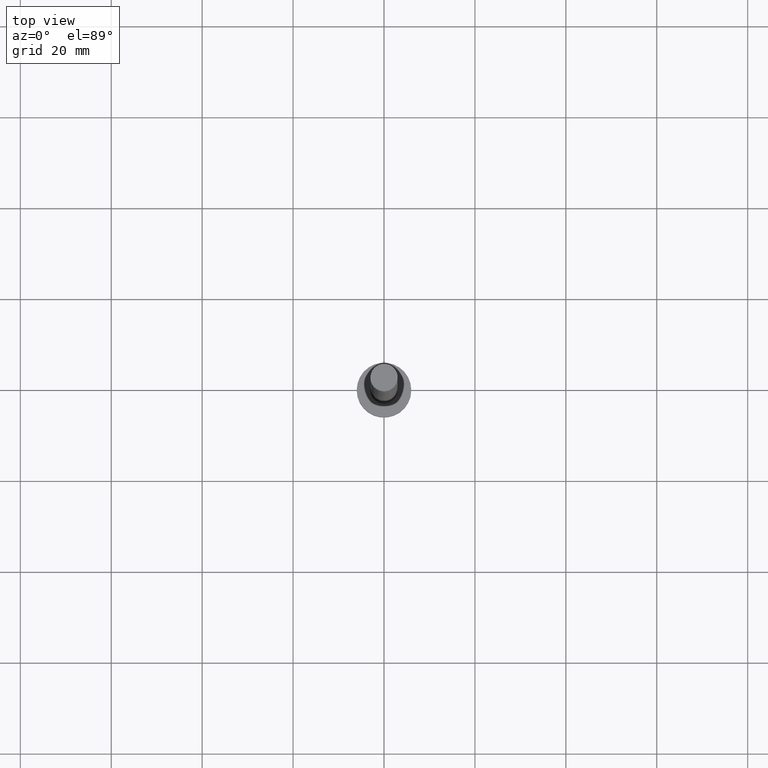
[diagram: clean part render]
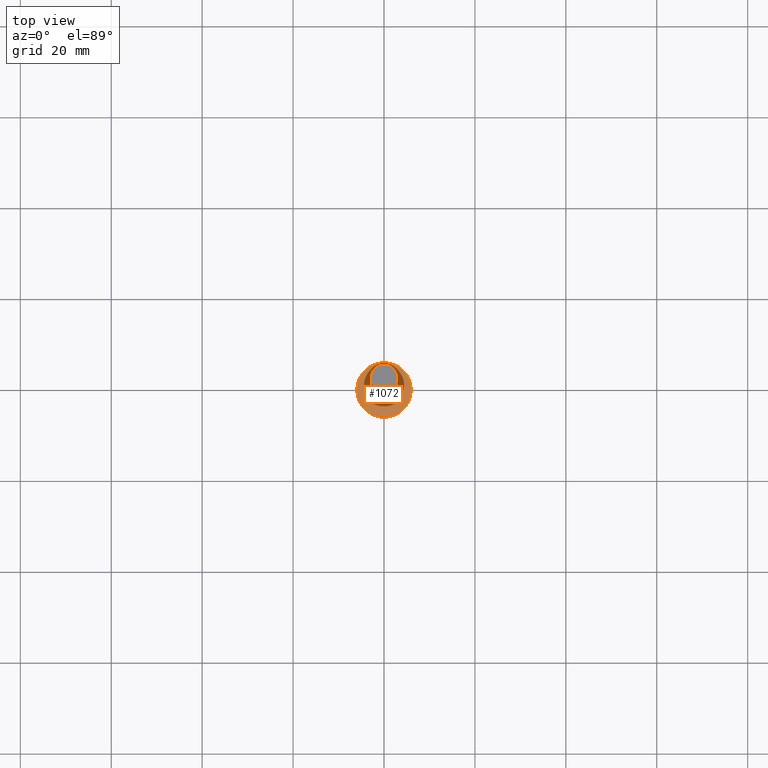
[diagram: same view with one face highlighted and labeled with its STEP entity id]
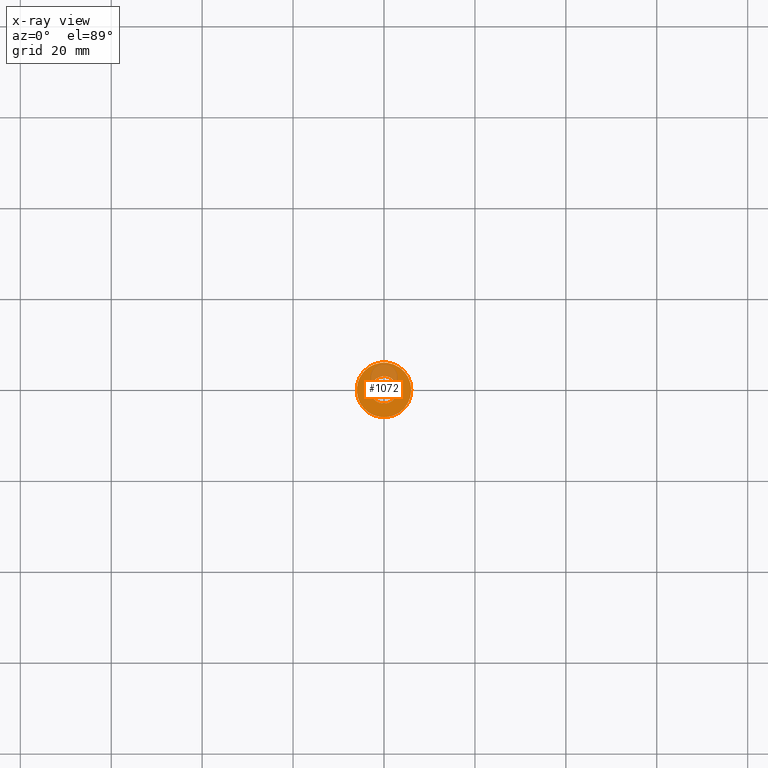
[diagram: x-ray of the same camera — body ghosted, the highlighted face saturated]
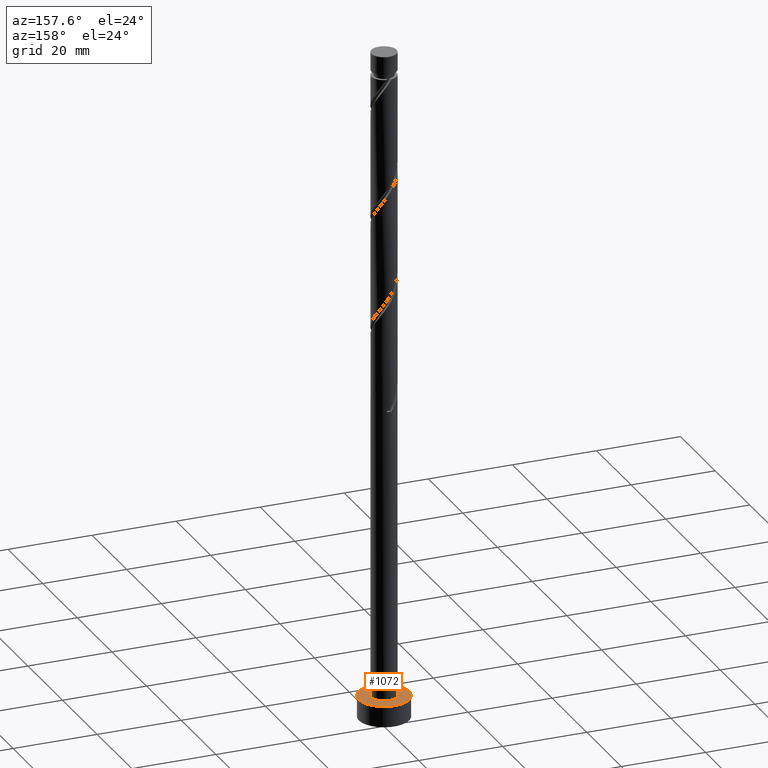
[diagram: same view with one face highlighted and labeled with its STEP entity id]
A machine part, top view. The second image highlights one B-rep face of the part: STEP entity #1072.
The next image is the same camera in x-ray: the body ghosted, the highlighted face saturated — about 19% of this face is hidden behind the body in this view.
A second angle (auxiliary view) of the same face is appended — the face is thin or edge-on in the first view.
In plain terms, the highlighted planar face has unit normal (0, 0, 1).
Its self-contained STEP definition (entity closure, byte-faithful):
#6 = CIRCLE ( 'NONE', #374, 3.000000000000000444 ) ;
#34 = DIRECTION ( 'NONE',  ( 0.000000000000000000, 0.000000000000000000, 1.000000000000000000 ) ) ;
#84 = CARTESIAN_POINT ( 'NONE',  ( 0.000000000000000000, 0.000000000000000000, 5.000000000000000000 ) ) ;
#113 = CARTESIAN_POINT ( 'NONE',  ( 6.000000000000000888, 7.347880794884120722E-16, 5.000000000000000000 ) ) ;
#117 = CIRCLE ( 'NONE', #1319, 6.000000000000000888 ) ;
#143 = FACE_BOUND ( 'NONE', #669, .T. ) ;
#146 = EDGE_CURVE ( 'NONE', #153, #499, #6, .T. ) ;
#153 = VERTEX_POINT ( 'NONE', #824 ) ;
#271 = CARTESIAN_POINT ( 'NONE',  ( 0.000000000000000000, 0.000000000000000000, 5.000000000000000000 ) ) ;
#297 = FACE_OUTER_BOUND ( 'NONE', #1505, .T. ) ;
#353 = VERTEX_POINT ( 'NONE', #113 ) ;
#360 = EDGE_CURVE ( 'NONE', #499, #153, #686, .T. ) ;
#372 = DIRECTION ( 'NONE',  ( 0.000000000000000000, 0.000000000000000000, 1.000000000000000000 ) ) ;
#374 = AXIS2_PLACEMENT_3D ( 'NONE', #271, #438, #1177 ) ;
#426 = CARTESIAN_POINT ( 'NONE',  ( 0.000000000000000000, 0.000000000000000000, 5.000000000000000000 ) ) ;
#438 = DIRECTION ( 'NONE',  ( 0.000000000000000000, 0.000000000000000000, 1.000000000000000000 ) ) ;
#443 = EDGE_CURVE ( 'NONE', #353, #1312, #117, .T. ) ;
#499 = VERTEX_POINT ( 'NONE', #551 ) ;
#551 = CARTESIAN_POINT ( 'NONE',  ( -3.000000000000000444, 0.000000000000000000, 5.000000000000000000 ) ) ;
#602 = ORIENTED_EDGE ( 'NONE', *, *, #360, .F. ) ;
#626 = CARTESIAN_POINT ( 'NONE',  ( 0.000000000000000000, 0.000000000000000000, 5.000000000000000000 ) ) ;
#669 = EDGE_LOOP ( 'NONE', ( #602, #684 ) ) ;
#684 = ORIENTED_EDGE ( 'NONE', *, *, #146, .F. ) ;
#686 = CIRCLE ( 'NONE', #756, 3.000000000000000444 ) ;
#708 = DIRECTION ( 'NONE',  ( 1.000000000000000000, 0.000000000000000000, 0.000000000000000000 ) ) ;
#756 = AXIS2_PLACEMENT_3D ( 'NONE', #84, #1374, #1130 ) ;
#824 = CARTESIAN_POINT ( 'NONE',  ( 3.000000000000000444, 3.673940397442060361E-16, 5.000000000000000000 ) ) ;
#923 = AXIS2_PLACEMENT_3D ( 'NONE', #1535, #34, #708 ) ;
#992 = CIRCLE ( 'NONE', #923, 6.000000000000000888 ) ;
#1014 = AXIS2_PLACEMENT_3D ( 'NONE', #426, #1286, #1549 ) ;
#1072 = ADVANCED_FACE ( 'NONE', ( #143, #297 ), #1558, .T. ) ;
#1130 = DIRECTION ( 'NONE',  ( 1.000000000000000000, 0.000000000000000000, 0.000000000000000000 ) ) ;
#1166 = ORIENTED_EDGE ( 'NONE', *, *, #1578, .T. ) ;
#1176 = CARTESIAN_POINT ( 'NONE',  ( -6.000000000000000888, 0.000000000000000000, 5.000000000000000000 ) ) ;
#1177 = DIRECTION ( 'NONE',  ( 1.000000000000000000, 0.000000000000000000, 0.000000000000000000 ) ) ;
#1286 = DIRECTION ( 'NONE',  ( 0.000000000000000000, 0.000000000000000000, 1.000000000000000000 ) ) ;
#1312 = VERTEX_POINT ( 'NONE', #1176 ) ;
#1319 = AXIS2_PLACEMENT_3D ( 'NONE', #626, #372, #1625 ) ;
#1374 = DIRECTION ( 'NONE',  ( 0.000000000000000000, 0.000000000000000000, 1.000000000000000000 ) ) ;
#1505 = EDGE_LOOP ( 'NONE', ( #1166, #1624 ) ) ;
#1535 = CARTESIAN_POINT ( 'NONE',  ( 0.000000000000000000, 0.000000000000000000, 5.000000000000000000 ) ) ;
#1549 = DIRECTION ( 'NONE',  ( 1.000000000000000000, 0.000000000000000000, -0.000000000000000000 ) ) ;
#1558 = PLANE ( 'NONE',  #1014 ) ;
#1578 = EDGE_CURVE ( 'NONE', #1312, #353, #992, .T. ) ;
#1624 = ORIENTED_EDGE ( 'NONE', *, *, #443, .T. ) ;
#1625 = DIRECTION ( 'NONE',  ( 1.000000000000000000, 0.000000000000000000, 0.000000000000000000 ) ) ;